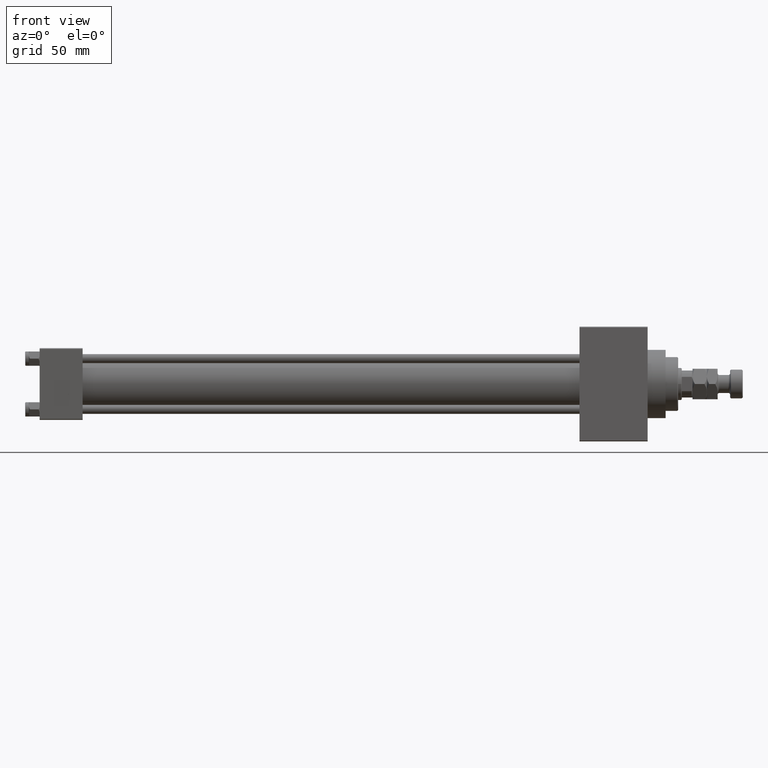
[diagram: clean part render]
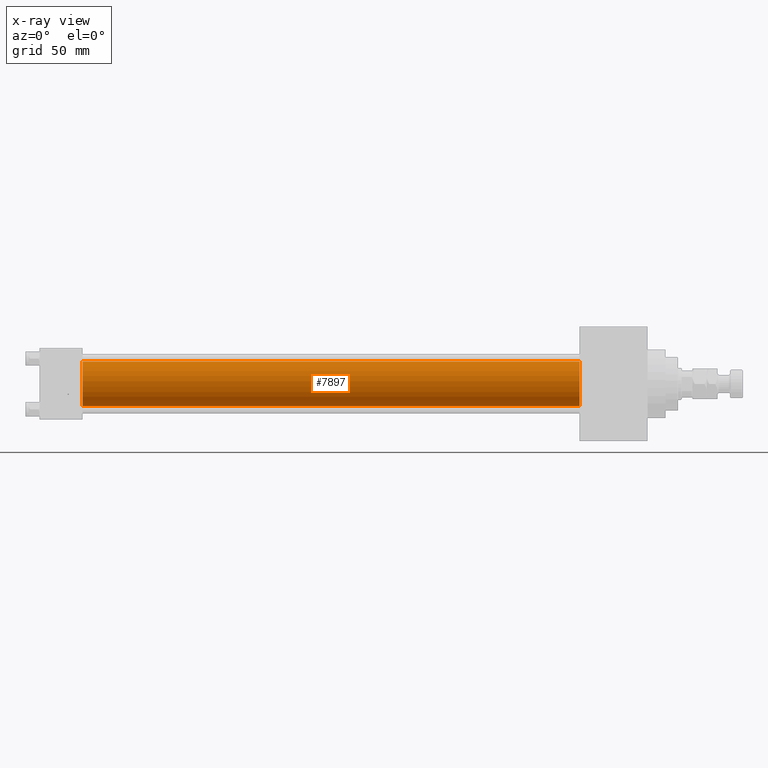
[diagram: x-ray — body ghosted, one internal face saturated and labeled with its STEP entity id]
A machine part, front view, then the same camera in x-ray: the body is ghosted and one INTERNAL B-rep face — a face not visible from any outside direction — is saturated and labeled: STEP entity #7897.
In plain terms, the highlighted cylindrical surface (edge-blend (fillet) strip) has radius 12.5 mm, axis along (-1, -0, -0).
Its self-contained STEP definition (entity closure, byte-faithful):
#50 = VECTOR ( 'NONE', #48928, 1000.000000000000000 ) ;
#179 = EDGE_CURVE ( 'NONE', #24372, #33145, #40978, .T. ) ;
#752 = DIRECTION ( 'NONE',  ( 0.000000000000000000, 0.000000000000000000, -1.000000000000000000 ) ) ;
#988 = CARTESIAN_POINT ( 'NONE',  ( 301.0000000000000568, -2.602085213965210642E-15, 0.000000000000000000 ) ) ;
#5120 = ORIENTED_EDGE ( 'NONE', *, *, #45972, .F. ) ;
#6412 = ORIENTED_EDGE ( 'NONE', *, *, #179, .T. ) ;
#7897 = ADVANCED_FACE ( 'NONE', ( #11585 ), #30552, .F. ) ;
#10858 = CARTESIAN_POINT ( 'NONE',  ( 301.0000000000000568, -2.602085213965210642E-15, 12.49999999999999645 ) ) ;
#11585 = FACE_OUTER_BOUND ( 'NONE', #23805, .T. ) ;
#12505 = DIRECTION ( 'NONE',  ( 1.000000000000000000, 0.000000000000000000, 0.000000000000000000 ) ) ;
#13070 = VECTOR ( 'NONE', #32921, 1000.000000000000000 ) ;
#13320 = EDGE_CURVE ( 'NONE', #46098, #24372, #41374, .T. ) ;
#20452 = DIRECTION ( 'NONE',  ( 0.000000000000000000, 0.000000000000000000, -1.000000000000000000 ) ) ;
#21892 = CARTESIAN_POINT ( 'NONE',  ( 301.0000000000000568, -2.602085213965210642E-15, 12.49999999999999645 ) ) ;
#23110 = DIRECTION ( 'NONE',  ( -1.000000000000000000, -0.000000000000000000, -0.000000000000000000 ) ) ;
#23184 = AXIS2_PLACEMENT_3D ( 'NONE', #30815, #23110, #27471 ) ;
#23805 = EDGE_LOOP ( 'NONE', ( #45056, #6412, #38380, #5120 ) ) ;
#24372 = VERTEX_POINT ( 'NONE', #27730 ) ;
#24772 = CARTESIAN_POINT ( 'NONE',  ( 24.00000000000000000, -2.602085213965210642E-15, 12.49999999999999645 ) ) ;
#26120 = CIRCLE ( 'NONE', #43291, 12.49999999999999645 ) ;
#26345 = CARTESIAN_POINT ( 'NONE',  ( 301.0000000000000568, -1.071276715031019515E-15, -12.49999999999999645 ) ) ;
#27471 = DIRECTION ( 'NONE',  ( 0.000000000000000000, 0.000000000000000000, 1.000000000000000000 ) ) ;
#27730 = CARTESIAN_POINT ( 'NONE',  ( 301.0000000000000568, -1.071276715031019515E-15, -12.49999999999999645 ) ) ;
#28185 = DIRECTION ( 'NONE',  ( 1.000000000000000000, 0.000000000000000000, 0.000000000000000000 ) ) ;
#30552 = CYLINDRICAL_SURFACE ( 'NONE', #23184, 12.49999999999999645 ) ;
#30815 = CARTESIAN_POINT ( 'NONE',  ( 301.0000000000000568, -2.602085213965210642E-15, 0.000000000000000000 ) ) ;
#32921 = DIRECTION ( 'NONE',  ( -1.000000000000000000, -0.000000000000000000, -0.000000000000000000 ) ) ;
#33145 = VERTEX_POINT ( 'NONE', #43758 ) ;
#33189 = VERTEX_POINT ( 'NONE', #24772 ) ;
#38380 = ORIENTED_EDGE ( 'NONE', *, *, #44250, .F. ) ;
#40978 = LINE ( 'NONE', #26345, #50 ) ;
#41374 = CIRCLE ( 'NONE', #42183, 12.49999999999999645 ) ;
#41383 = LINE ( 'NONE', #21892, #13070 ) ;
#42183 = AXIS2_PLACEMENT_3D ( 'NONE', #988, #28185, #752 ) ;
#43291 = AXIS2_PLACEMENT_3D ( 'NONE', #47638, #12505, #20452 ) ;
#43758 = CARTESIAN_POINT ( 'NONE',  ( 24.00000000000000000, -1.071276715031019515E-15, -12.49999999999999645 ) ) ;
#44250 = EDGE_CURVE ( 'NONE', #33189, #33145, #26120, .T. ) ;
#45056 = ORIENTED_EDGE ( 'NONE', *, *, #13320, .T. ) ;
#45972 = EDGE_CURVE ( 'NONE', #46098, #33189, #41383, .T. ) ;
#46098 = VERTEX_POINT ( 'NONE', #10858 ) ;
#47638 = CARTESIAN_POINT ( 'NONE',  ( 24.00000000000000000, -2.602085213965210642E-15, 0.000000000000000000 ) ) ;
#48928 = DIRECTION ( 'NONE',  ( -1.000000000000000000, -0.000000000000000000, -0.000000000000000000 ) ) ;